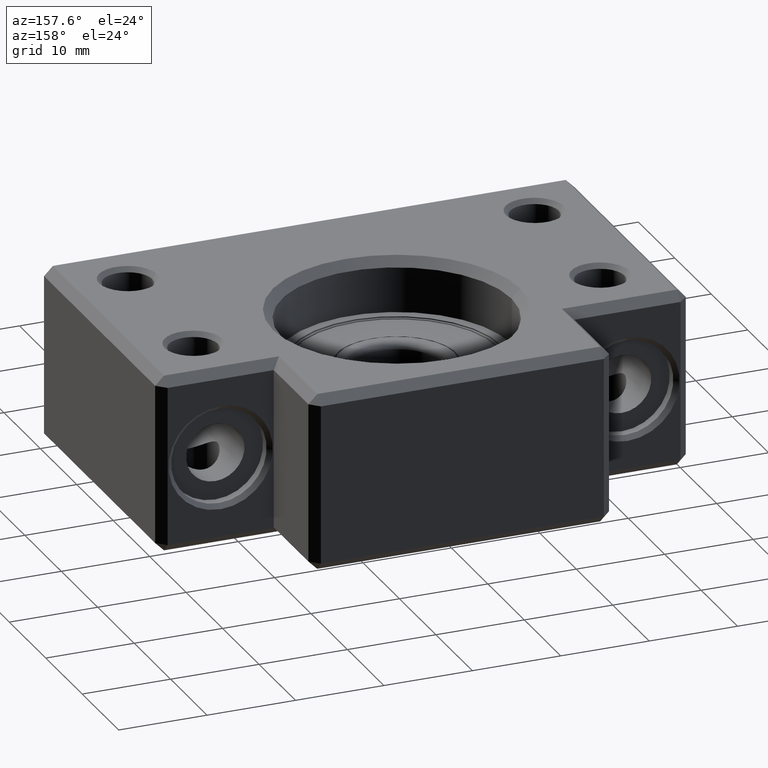
[diagram: clean part render]
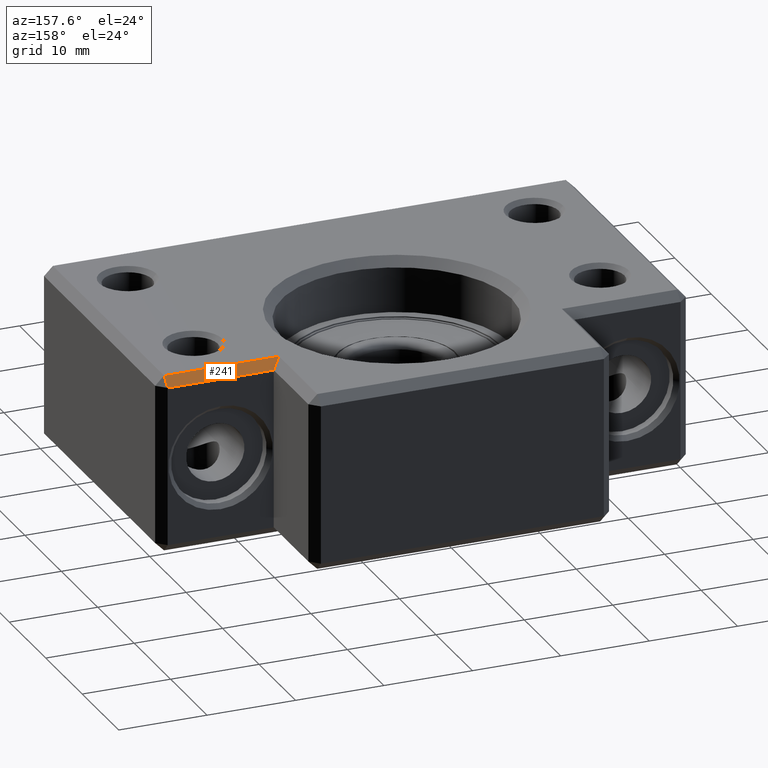
[diagram: same view with one face highlighted and labeled with its STEP entity id]
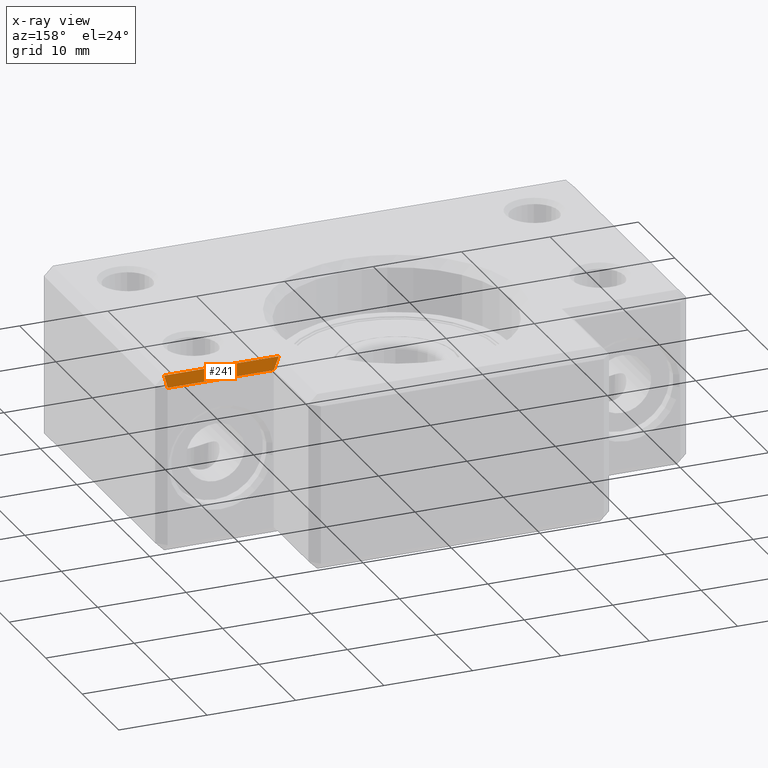
[diagram: x-ray of the same camera — body ghosted, the highlighted face saturated]
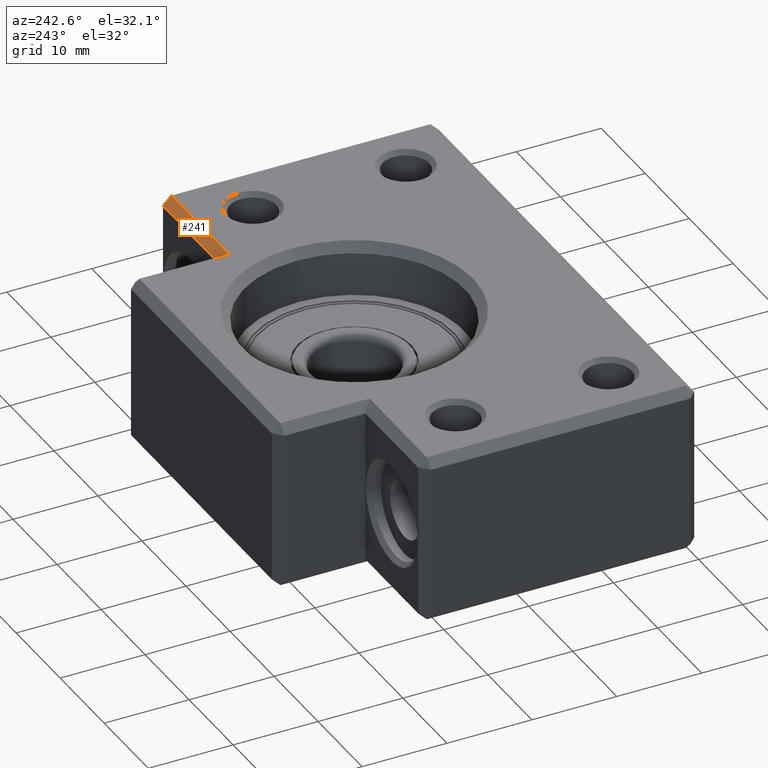
[diagram: same view with one face highlighted and labeled with its STEP entity id]
A machine part, auxiliary view. The second image highlights one B-rep face of the part: STEP entity #241.
The next image is the same camera in x-ray: the body ghosted, the highlighted face saturated — about 0% of this face is hidden behind the body in this view.
A second angle (auxiliary view) of the same face is appended — the face is thin or edge-on in the first view.
In plain terms, the highlighted planar face has unit normal (-0, 0.7071, 0.7071).
Its self-contained STEP definition (entity closure, byte-faithful):
#21 = EDGE_CURVE ( 'NONE', #689, #268, #953, .T. ) ;
#233 = EDGE_LOOP ( 'NONE', ( #349, #356, #342, #331 ) ) ;
#241 = ADVANCED_FACE ( 'NONE', ( #1334 ), #1331, .T. ) ;
#268 = VERTEX_POINT ( 'NONE', #1408 ) ;
#294 = EDGE_CURVE ( 'NONE', #296, #268, #1484, .T. ) ;
#296 = VERTEX_POINT ( 'NONE', #1475 ) ;
#329 = EDGE_CURVE ( 'NONE', #684, #296, #1550, .T. ) ;
#331 = ORIENTED_EDGE ( 'NONE', *, *, #6553, .F. ) ;
#342 = ORIENTED_EDGE ( 'NONE', *, *, #329, .F. ) ;
#349 = ORIENTED_EDGE ( 'NONE', *, *, #21, .T. ) ;
#356 = ORIENTED_EDGE ( 'NONE', *, *, #294, .F. ) ;
#684 = VERTEX_POINT ( 'NONE', #2171 ) ;
#689 = VERTEX_POINT ( 'NONE', #2169 ) ;
#950 = DIRECTION ( 'NONE',  ( -0.5773502691896279500, -0.5773502691896237300, 0.5773502691896257300 ) ) ;
#951 = VECTOR ( 'NONE', #950, 999.9999999999998900 ) ;
#952 = CARTESIAN_POINT ( 'NONE',  ( 0.6666666666665308500, 16.16666666666665000, 25.33333333333340300 ) ) ;
#953 = LINE ( 'NONE', #952, #951 ) ;
#1327 = DIRECTION ( 'NONE',  ( 0.0000000000000000000, -0.7071067811865460200, 0.7071067811865490200 ) ) ;
#1328 = DIRECTION ( 'NONE',  ( -3.774260717989851400E-016, 0.7071067811865490200, 0.7071067811865460200 ) ) ;
#1329 = CARTESIAN_POINT ( 'NONE',  ( -30.00000000000001800, 31.49999999999996400, 10.00000000000000000 ) ) ;
#1330 = AXIS2_PLACEMENT_3D ( 'NONE', #1329, #1328, #1327 ) ;
#1331 = PLANE ( 'NONE',  #1330 ) ;
#1334 = FACE_OUTER_BOUND ( 'NONE', #233, .T. ) ;
#1408 = CARTESIAN_POINT ( 'NONE',  ( 15.99999999999998900, 31.49999999999999300, 10.00000000000000000 ) ) ;
#1475 = CARTESIAN_POINT ( 'NONE',  ( 28.99999999999999600, 31.50000000000000000, 10.00000000000000000 ) ) ;
#1481 = DIRECTION ( 'NONE',  ( -1.000000000000000000, -5.337610695313251400E-016, 0.0000000000000000000 ) ) ;
#1482 = VECTOR ( 'NONE', #1481, 1000.000000000000000 ) ;
#1483 = CARTESIAN_POINT ( 'NONE',  ( 17.00000000000000700, 31.49999999999999300, 10.00000000000000000 ) ) ;
#1484 = LINE ( 'NONE', #1483, #1482 ) ;
#1547 = DIRECTION ( 'NONE',  ( 1.920353363415166900E-015, -0.7071067811865460200, 0.7071067811865489100 ) ) ;
#1548 = VECTOR ( 'NONE', #1547, 1000.000000000000100 ) ;
#1549 = CARTESIAN_POINT ( 'NONE',  ( 29.00000000000000000, 31.50000000000000000, 9.999999999999998200 ) ) ;
#1550 = LINE ( 'NONE', #1549, #1548 ) ;
#2169 = CARTESIAN_POINT ( 'NONE',  ( 17.00000000000000700, 32.50000000000000000, 8.999999999999985800 ) ) ;
#2171 = CARTESIAN_POINT ( 'NONE',  ( 28.99999999999999600, 32.50000000000000700, 8.999999999999985800 ) ) ;
#4211 = DIRECTION ( 'NONE',  ( 1.000000000000000000, 5.337610695313251400E-016, 0.0000000000000000000 ) ) ;
#5260 = VECTOR ( 'NONE', #4211, 1000.000000000000000 ) ;
#5261 = CARTESIAN_POINT ( 'NONE',  ( 30.00000000000001400, 32.50000000000000700, 8.999999999999985800 ) ) ;
#5262 = LINE ( 'NONE', #5261, #5260 ) ;
#6553 = EDGE_CURVE ( 'NONE', #689, #684, #5262, .T. ) ;